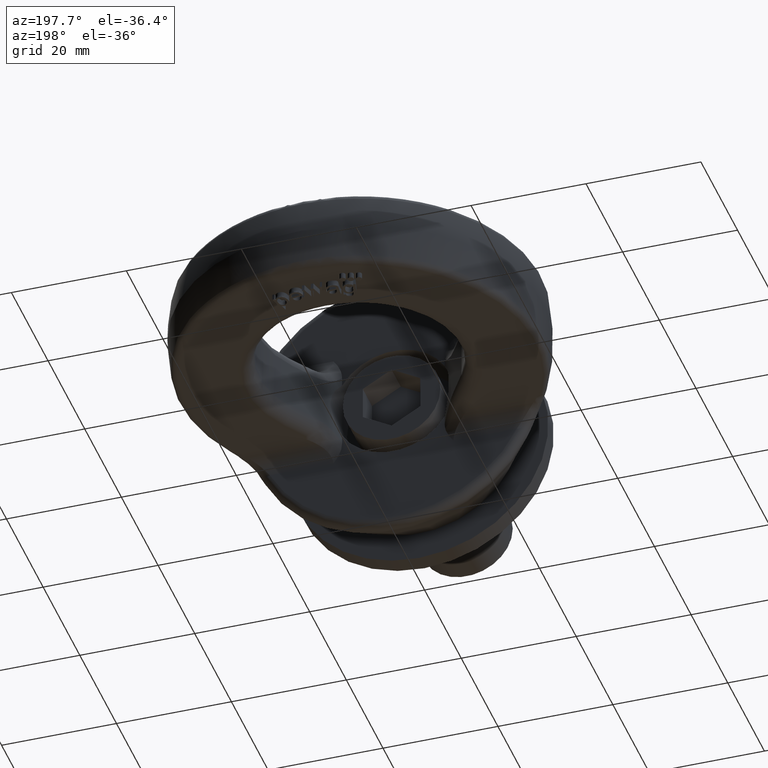
[diagram: clean part render]
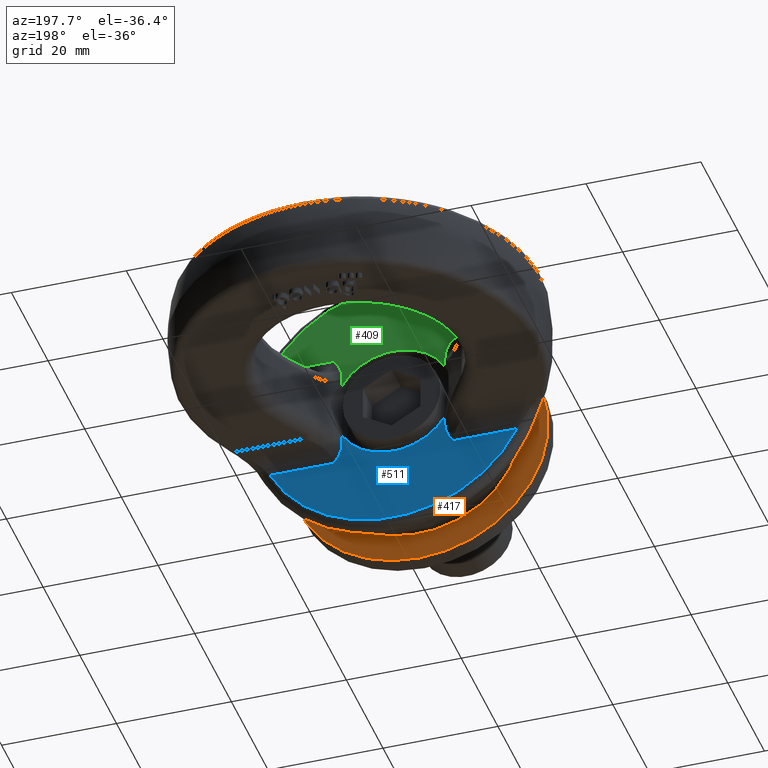
[diagram: same view with three faces highlighted in distinct colors, each labeled with its STEP entity id]
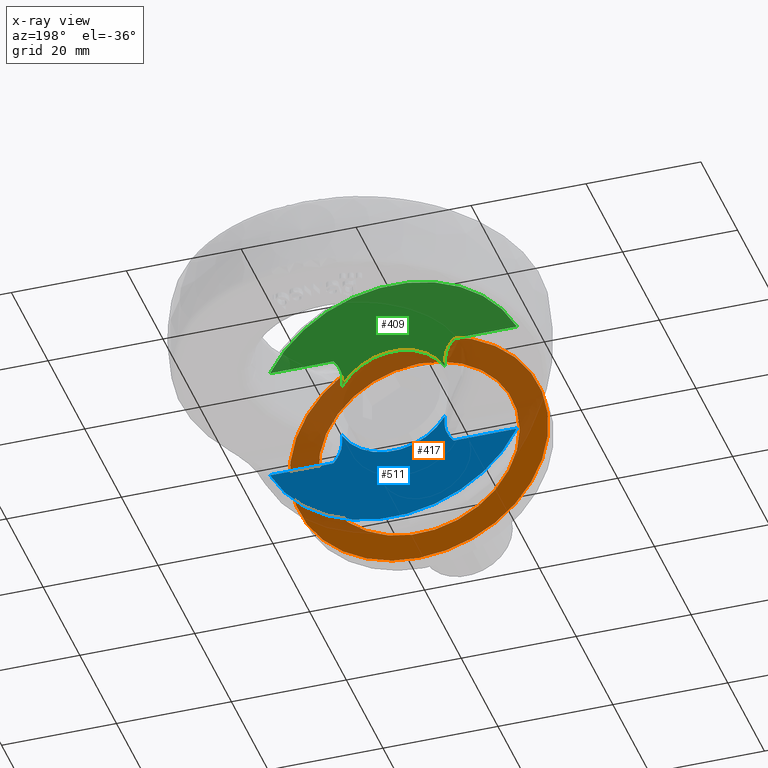
[diagram: x-ray of the same camera — body ghosted, the three highlighted faces saturated]
A machine part, auxiliary view with three faces highlighted in distinct colors.
The next image is the same camera in x-ray (body ghosted, the three faces saturated) — at least one of them is partly hidden behind the body in this view.
Their STEP definitions:

[orange] entity #417 — the highlighted planar face has unit normal (0, -1, 0).
#417=ADVANCED_FACE('',(#758,#759),#600,.F.);
#600=PLANE('',#3382);
#694=CIRCLE('',#3357,17.5000000000001);
#704=CIRCLE('',#3378,22.5);
#758=FACE_BOUND('',#827,.T.);
#759=FACE_BOUND('',#828,.T.);
#827=EDGE_LOOP('',(#1581));
#828=EDGE_LOOP('',(#1582));
#1581=ORIENTED_EDGE('',*,*,#2756,.F.);
#1582=ORIENTED_EDGE('',*,*,#2724,.T.);
#2428=VERTEX_POINT('',#4450);
#2454=VERTEX_POINT('',#4537);
#2724=EDGE_CURVE('',#2428,#2428,#694,.T.);
#2756=EDGE_CURVE('',#2454,#2454,#704,.T.);
#3357=AXIS2_PLACEMENT_3D('',#4449,#3584,#3585);
#3378=AXIS2_PLACEMENT_3D('',#4536,#3634,#3635);
#3382=AXIS2_PLACEMENT_3D('',#4542,#3642,#3643);
#3584=DIRECTION('',(0.,-1.,0.));
#3585=DIRECTION('',(0.,0.,1.));
#3634=DIRECTION('',(0.,-1.,0.));
#3635=DIRECTION('',(0.,0.,-1.));
#3642=DIRECTION('',(0.,-1.,0.));
#3643=DIRECTION('',(0.,0.,-1.));
#4449=CARTESIAN_POINT('',(-1.27403500852703E-13,3.,2.7030162057077E-14));
#4450=CARTESIAN_POINT('',(-1.27403500852703E-13,3.,17.5000000000001));
#4536=CARTESIAN_POINT('',(0.,3.,0.));
#4537=CARTESIAN_POINT('',(0.,3.,-22.5));
#4542=CARTESIAN_POINT('',(0.,3.,0.));

[blue] entity #511 — the highlighted planar face has unit normal (0, 1, 0).
#331=FACE_OUTER_BOUND('',#942,.T.);
#511=ADVANCED_FACE('',(#331),#647,.T.);
#647=PLANE('',#3468);
#718=CIRCLE('',#3405,10.3149545762236);
#729=CIRCLE('',#3467,23.9118750000001);
#942=EDGE_LOOP('',(#2014,#2015,#2016,#2017,#2018,#2019,#2020,#2021));
#1066=LINE('',#4514,#1262);
#1070=LINE('',#4527,#1266);
#1171=LINE('',#5859,#1395);
#1172=LINE('',#5863,#1396);
#1262=VECTOR('',#3612,1.);
#1266=VECTOR('',#3624,1.);
#1395=VECTOR('',#3939,1.);
#1396=VECTOR('',#3942,1.);
#2014=ORIENTED_EDGE('',*,*,#2776,.F.);
#2015=ORIENTED_EDGE('',*,*,#2751,.T.);
#2016=ORIENTED_EDGE('',*,*,#2967,.T.);
#2017=ORIENTED_EDGE('',*,*,#2968,.T.);
#2018=ORIENTED_EDGE('',*,*,#2969,.T.);
#2019=ORIENTED_EDGE('',*,*,#2970,.T.);
#2020=ORIENTED_EDGE('',*,*,#2971,.T.);
#2021=ORIENTED_EDGE('',*,*,#2744,.F.);
#2445=VERTEX_POINT('',#4513);
#2446=VERTEX_POINT('',#4515);
#2450=VERTEX_POINT('',#4526);
#2451=VERTEX_POINT('',#4528);
#2592=VERTEX_POINT('',#5858);
#2593=VERTEX_POINT('',#5860);
#2594=VERTEX_POINT('',#5862);
#2595=VERTEX_POINT('',#5864);
#2744=EDGE_CURVE('',#2445,#2446,#1066,.T.);
#2751=EDGE_CURVE('',#2451,#2450,#1070,.T.);
#2776=EDGE_CURVE('',#2451,#2445,#718,.T.);
#2967=EDGE_CURVE('',#2450,#2592,#3251,.T.);
#2968=EDGE_CURVE('',#2592,#2593,#1171,.T.);
#2969=EDGE_CURVE('',#2593,#2594,#729,.T.);
#2970=EDGE_CURVE('',#2594,#2595,#1172,.T.);
#2971=EDGE_CURVE('',#2595,#2446,#3252,.T.);
#3251=B_SPLINE_CURVE_WITH_KNOTS('',3,(#5854,#5855,#5856,#5857),
 .UNSPECIFIED.,.F.,.F.,(4,4),(0.,1.),.UNSPECIFIED.);
#3252=B_SPLINE_CURVE_WITH_KNOTS('',3,(#5865,#5866,#5867,#5868),
 .UNSPECIFIED.,.F.,.F.,(4,4),(0.,1.),.UNSPECIFIED.);
#3405=AXIS2_PLACEMENT_3D('',#4681,#3688,#3689);
#3467=AXIS2_PLACEMENT_3D('',#5861,#3940,#3941);
#3468=AXIS2_PLACEMENT_3D('',#5869,#3943,#3944);
#3612=DIRECTION('',(2.34291072916505E-15,0.,-1.));
#3624=DIRECTION('',(2.34291072916505E-15,0.,-1.));
#3688=DIRECTION('',(1.94269602349167E-16,1.,4.55156335694492E-31));
#3689=DIRECTION('',(1.,-3.36351161443873E-16,2.34291072916505E-15));
#3939=DIRECTION('',(1.,-1.94269602349167E-16,2.34291072916505E-15));
#3940=DIRECTION('',(1.94269602349167E-16,1.,4.55156335694492E-31));
#3941=DIRECTION('',(1.,-1.45093053219524E-16,2.34291072916505E-15));
#3942=DIRECTION('',(1.,-1.94269602349167E-16,2.34291072916505E-15));
#3943=DIRECTION('',(1.94269602349167E-16,1.,4.55156335694492E-31));
#3944=DIRECTION('',(1.,-1.94289029309402E-16,2.34534613952064E-15));
#4513=CARTESIAN_POINT('',(-8.92946428571428,17.,-5.16361844830834));
#4514=CARTESIAN_POINT('',(-8.92946428571421,17.,-35.2));
#4515=CARTESIAN_POINT('',(-8.92946428571427,17.,-6.6813356378136));
#4526=CARTESIAN_POINT('',(8.9294642857143,17.,-6.6813356378134));
#4527=CARTESIAN_POINT('',(8.92946428571437,17.,-35.2));
#4528=CARTESIAN_POINT('',(8.9294642857143,17.,-5.16361844830831));
#4681=CARTESIAN_POINT('',(0.,17.,0.));
#5854=CARTESIAN_POINT('',(8.9294642857143,17.,-6.6813356378134));
#5855=CARTESIAN_POINT('',(8.92946428571431,17.,-8.09622549880172));
#5856=CARTESIAN_POINT('',(9.53177175055979,17.,-9.45971977571757));
#5857=CARTESIAN_POINT('',(10.4607142857143,17.,-10.5));
#5858=CARTESIAN_POINT('',(10.4607142857143,17.,-10.5));
#5859=CARTESIAN_POINT('',(8.92946428571431,17.,-10.5));
#5860=CARTESIAN_POINT('',(21.483197294994,17.,-10.5));
#5861=CARTESIAN_POINT('',(1.92350511161869E-13,17.,4.50660076361525E-28));
#5862=CARTESIAN_POINT('',(-21.4831972949936,17.,-10.5000000000001));
#5863=CARTESIAN_POINT('',(8.92946428571431,17.,-10.5));
#5864=CARTESIAN_POINT('',(-10.4607142857143,17.,-10.5));
#5865=CARTESIAN_POINT('',(-10.4607142857143,17.,-10.5));
#5866=CARTESIAN_POINT('',(-9.53177175056822,17.,-9.45971977571011));
#5867=CARTESIAN_POINT('',(-8.92946428571419,16.9999999999999,-8.09622549880189));
#5868=CARTESIAN_POINT('',(-8.9294642857142,16.9999999999999,-6.6813356378136));
#5869=CARTESIAN_POINT('',(8.92946428571437,17.,-35.2));

[green] entity #409 — the highlighted planar face has unit normal (-0, 1, 0).
#246=FACE_OUTER_BOUND('',#816,.T.);
#409=ADVANCED_FACE('',(#246),#596,.T.);
#596=PLANE('',#3356);
#692=CIRCLE('',#3354,10.3149545762236);
#693=CIRCLE('',#3355,23.9118750000001);
#816=EDGE_LOOP('',(#1532,#1533,#1534,#1535,#1536,#1537,#1538,#1539));
#1060=LINE('',#4429,#1256);
#1061=LINE('',#4436,#1257);
#1062=LINE('',#4440,#1258);
#1063=LINE('',#4447,#1259);
#1256=VECTOR('',#3576,1.);
#1257=VECTOR('',#3577,1.);
#1258=VECTOR('',#3580,1.);
#1259=VECTOR('',#3581,1.);
#1532=ORIENTED_EDGE('',*,*,#2716,.F.);
#1533=ORIENTED_EDGE('',*,*,#2717,.T.);
#1534=ORIENTED_EDGE('',*,*,#2718,.T.);
#1535=ORIENTED_EDGE('',*,*,#2719,.T.);
#1536=ORIENTED_EDGE('',*,*,#2720,.T.);
#1537=ORIENTED_EDGE('',*,*,#2721,.T.);
#1538=ORIENTED_EDGE('',*,*,#2722,.T.);
#1539=ORIENTED_EDGE('',*,*,#2723,.F.);
#2420=VERTEX_POINT('',#4427);
#2421=VERTEX_POINT('',#4428);
#2422=VERTEX_POINT('',#4430);
#2423=VERTEX_POINT('',#4435);
#2424=VERTEX_POINT('',#4437);
#2425=VERTEX_POINT('',#4439);
#2426=VERTEX_POINT('',#4441);
#2427=VERTEX_POINT('',#4446);
#2716=EDGE_CURVE('',#2420,#2421,#692,.T.);
#2717=EDGE_CURVE('',#2420,#2422,#1060,.T.);
#2718=EDGE_CURVE('',#2422,#2423,#3128,.T.);
#2719=EDGE_CURVE('',#2423,#2424,#1061,.T.);
#2720=EDGE_CURVE('',#2424,#2425,#693,.T.);
#2721=EDGE_CURVE('',#2425,#2426,#1062,.T.);
#2722=EDGE_CURVE('',#2426,#2427,#3129,.T.);
#2723=EDGE_CURVE('',#2421,#2427,#1063,.T.);
#3128=B_SPLINE_CURVE_WITH_KNOTS('',3,(#4431,#4432,#4433,#4434),
 .UNSPECIFIED.,.F.,.F.,(4,4),(0.,1.),.UNSPECIFIED.);
#3129=B_SPLINE_CURVE_WITH_KNOTS('',3,(#4442,#4443,#4444,#4445),
 .UNSPECIFIED.,.F.,.F.,(4,4),(0.,1.),.UNSPECIFIED.);
#3354=AXIS2_PLACEMENT_3D('',#4426,#3574,#3575);
#3355=AXIS2_PLACEMENT_3D('',#4438,#3578,#3579);
#3356=AXIS2_PLACEMENT_3D('',#4448,#3582,#3583);
#3574=DIRECTION('',(-1.94269602349167E-16,1.,0.));
#3575=DIRECTION('',(-1.,-3.36351161443873E-16,0.));
#3576=DIRECTION('',(0.,0.,1.));
#3577=DIRECTION('',(-1.,-1.94269602349167E-16,1.96585689920538E-32));
#3578=DIRECTION('',(-1.94269602349167E-16,1.,0.));
#3579=DIRECTION('',(-1.,-1.45093053219524E-16,0.));
#3580=DIRECTION('',(-1.,-1.94269602349167E-16,1.96585689920538E-32));
#3581=DIRECTION('',(0.,0.,1.));
#3582=DIRECTION('',(-1.94269602349167E-16,1.,0.));
#3583=DIRECTION('',(-1.,-1.94289029309402E-16,0.));
#4426=CARTESIAN_POINT('',(0.,17.,0.));
#4427=CARTESIAN_POINT('',(-8.92946428571429,17.,5.16361844830833));
#4428=CARTESIAN_POINT('',(8.92946428571429,17.,5.16361844830832));
#4429=CARTESIAN_POINT('',(-8.92946428571429,17.,35.2));
#4430=CARTESIAN_POINT('',(-8.92946428571429,17.,6.68133563781342));
#4431=CARTESIAN_POINT('',(-8.92946428571429,17.,6.68133563781342));
#4432=CARTESIAN_POINT('',(-8.92946428571429,17.,8.09622549880175));
#4433=CARTESIAN_POINT('',(-9.53177175055977,17.,9.45971977571759));
#4434=CARTESIAN_POINT('',(-10.4607142857143,17.,10.5));
#4435=CARTESIAN_POINT('',(-10.4607142857143,17.,10.5));
#4436=CARTESIAN_POINT('',(-8.92946428571429,17.,10.5));
#4437=CARTESIAN_POINT('',(-21.4831972949939,17.,10.5));
#4438=CARTESIAN_POINT('',(-1.92350511161869E-13,17.,0.));
#4439=CARTESIAN_POINT('',(21.4831972949936,17.,10.5));
#4440=CARTESIAN_POINT('',(-8.92946428571429,17.,10.5));
#4441=CARTESIAN_POINT('',(10.4607142857143,17.,10.5));
#4442=CARTESIAN_POINT('',(10.4607142857143,17.,10.5));
#4443=CARTESIAN_POINT('',(9.53177175056824,17.,9.45971977571009));
#4444=CARTESIAN_POINT('',(8.92946428571421,16.9999999999999,8.09622549880187));
#4445=CARTESIAN_POINT('',(8.92946428571421,16.9999999999999,6.68133563781358));
#4446=CARTESIAN_POINT('',(8.92946428571429,17.,6.68133563781358));
#4447=CARTESIAN_POINT('',(8.92946428571429,17.,35.2));
#4448=CARTESIAN_POINT('',(-8.92946428571429,17.,35.2));